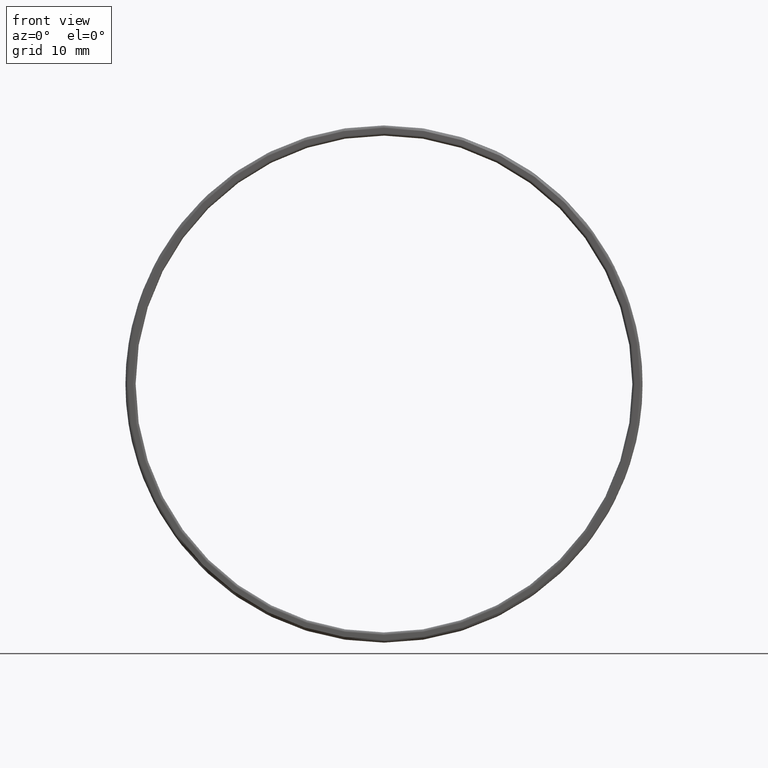
[diagram: clean part render]
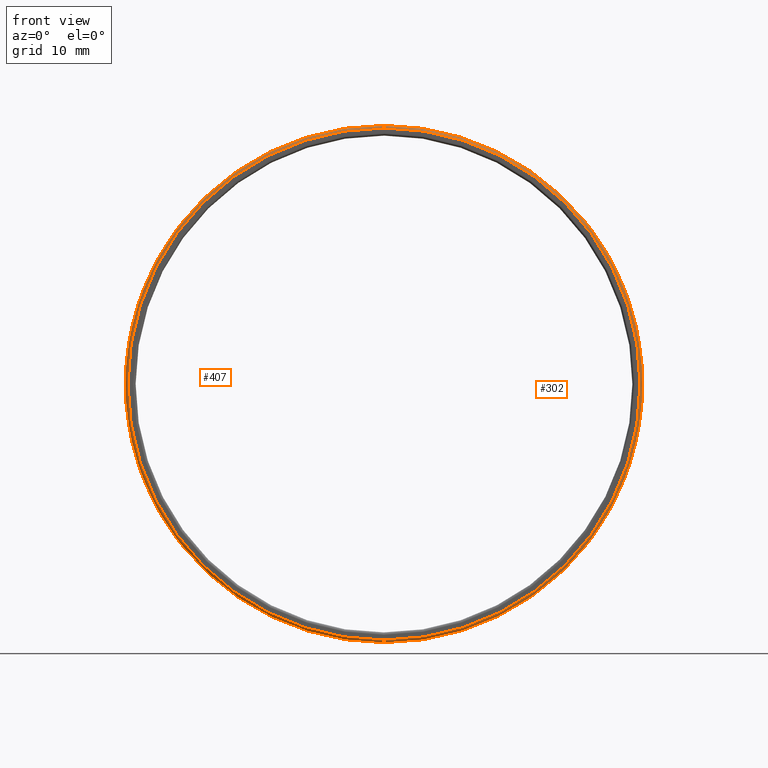
[diagram: same view with one multi-face feature highlighted, each face labeled with its STEP entity id]
A machine part, front view. The highlighted faces form ONE feature: a constant-radius fillet chain: 2 tangent blend faces with common blend radius 0.25 mm. The faces share edges in the B-rep.
Their STEP definitions:
[1] entity #302 (Torus):
#15 = CARTESIAN_POINT ( 'NONE',  ( 0.0000000000000000000, -0.2500000000000019429, 0.0000000000000000000 ) ) ;
#40 = EDGE_CURVE ( 'NONE', #435, #252, #283, .T. ) ;
#60 = VERTEX_POINT ( 'NONE', #215 ) ;
#66 = CIRCLE ( 'NONE', #128, 25.39999999999999858 ) ;
#77 = VERTEX_POINT ( 'NONE', #325 ) ;
#81 = DIRECTION ( 'NONE',  ( -0.0000000000000000000, 1.000000000000000000, -0.0000000000000000000 ) ) ;
#83 = CARTESIAN_POINT ( 'NONE',  ( 0.0000000000000000000, -0.5000000000000022204, 25.14999999999999858 ) ) ;
#84 = EDGE_CURVE ( 'NONE', #435, #77, #276, .T. ) ;
#97 = CARTESIAN_POINT ( 'NONE',  ( 3.095294784844934972E-15, -0.5000000000000022204, -25.14999999999999858 ) ) ;
#109 = TOROIDAL_SURFACE ( 'NONE', #200, 25.14999999999999858, 0.2500000000000000000 ) ;
#128 = AXIS2_PLACEMENT_3D ( 'NONE', #432, #267, #342 ) ;
#137 = EDGE_CURVE ( 'NONE', #60, #77, #66, .T. ) ;
#138 = CARTESIAN_POINT ( 'NONE',  ( 0.0000000000000000000, -0.5000000000000022204, 0.0000000000000000000 ) ) ;
#172 = DIRECTION ( 'NONE',  ( 0.0000000000000000000, -1.000000000000000000, 0.0000000000000000000 ) ) ;
#173 = CIRCLE ( 'NONE', #351, 0.2500000000000002220 ) ;
#200 = AXIS2_PLACEMENT_3D ( 'NONE', #15, #81, #309 ) ;
#213 = ORIENTED_EDGE ( 'NONE', *, *, #453, .F. ) ;
#215 = CARTESIAN_POINT ( 'NONE',  ( 0.0000000000000000000, -0.2500000000000019429, 25.39999999999999858 ) ) ;
#236 = ORIENTED_EDGE ( 'NONE', *, *, #40, .F. ) ;
#248 = DIRECTION ( 'NONE',  ( 0.0000000000000000000, 0.0000000000000000000, 1.000000000000000000 ) ) ;
#252 = VERTEX_POINT ( 'NONE', #83 ) ;
#267 = DIRECTION ( 'NONE',  ( -0.0000000000000000000, 1.000000000000000000, -0.0000000000000000000 ) ) ;
#276 = CIRCLE ( 'NONE', #419, 0.2500000000000002220 ) ;
#283 = CIRCLE ( 'NONE', #404, 25.14999999999999858 ) ;
#296 = CARTESIAN_POINT ( 'NONE',  ( 3.079986699855593078E-15, -0.2500000000000019429, -25.14999999999999858 ) ) ;
#298 = FACE_OUTER_BOUND ( 'NONE', #449, .T. ) ;
#302 = ADVANCED_FACE ( 'NONE', ( #298 ), #109, .T. ) ;
#309 = DIRECTION ( 'NONE',  ( 0.0000000000000000000, 0.0000000000000000000, 1.000000000000000000 ) ) ;
#325 = CARTESIAN_POINT ( 'NONE',  ( 3.110602869834276865E-15, -0.2500000000000019429, -25.39999999999999858 ) ) ;
#333 = DIRECTION ( 'NONE',  ( 1.000000000000000000, 0.0000000000000000000, 1.224646799147353207E-16 ) ) ;
#340 = ORIENTED_EDGE ( 'NONE', *, *, #84, .T. ) ;
#342 = DIRECTION ( 'NONE',  ( 0.0000000000000000000, 0.0000000000000000000, 1.000000000000000000 ) ) ;
#351 = AXIS2_PLACEMENT_3D ( 'NONE', #367, #451, #393 ) ;
#367 = CARTESIAN_POINT ( 'NONE',  ( 0.0000000000000000000, -0.2500000000000019429, 25.14999999999999858 ) ) ;
#374 = DIRECTION ( 'NONE',  ( 1.224646799147349509E-16, 0.0000000000000000000, -1.000000000000000000 ) ) ;
#393 = DIRECTION ( 'NONE',  ( 0.0000000000000000000, 0.0000000000000000000, 1.000000000000000000 ) ) ;
#404 = AXIS2_PLACEMENT_3D ( 'NONE', #138, #172, #248 ) ;
#419 = AXIS2_PLACEMENT_3D ( 'NONE', #296, #333, #374 ) ;
#432 = CARTESIAN_POINT ( 'NONE',  ( 0.0000000000000000000, -0.2500000000000019429, 0.0000000000000000000 ) ) ;
#435 = VERTEX_POINT ( 'NONE', #97 ) ;
#440 = ORIENTED_EDGE ( 'NONE', *, *, #137, .F. ) ;
#449 = EDGE_LOOP ( 'NONE', ( #236, #340, #440, #213 ) ) ;
#451 = DIRECTION ( 'NONE',  ( -1.000000000000000000, 0.0000000000000000000, 0.0000000000000000000 ) ) ;
#453 = EDGE_CURVE ( 'NONE', #252, #60, #173, .T. ) ;
[2] entity #407 (Torus):
#16 = EDGE_CURVE ( 'NONE', #77, #60, #114, .T. ) ;
#18 = CARTESIAN_POINT ( 'NONE',  ( 0.0000000000000000000, -0.5000000000000022204, 0.0000000000000000000 ) ) ;
#20 = CIRCLE ( 'NONE', #240, 25.14999999999999858 ) ;
#26 = DIRECTION ( 'NONE',  ( 0.0000000000000000000, 0.0000000000000000000, 1.000000000000000000 ) ) ;
#35 = TOROIDAL_SURFACE ( 'NONE', #192, 25.14999999999999858, 0.2500000000000000000 ) ;
#45 = ORIENTED_EDGE ( 'NONE', *, *, #84, .F. ) ;
#51 = CARTESIAN_POINT ( 'NONE',  ( 0.0000000000000000000, -0.2500000000000019429, 0.0000000000000000000 ) ) ;
#52 = ORIENTED_EDGE ( 'NONE', *, *, #16, .F. ) ;
#60 = VERTEX_POINT ( 'NONE', #215 ) ;
#77 = VERTEX_POINT ( 'NONE', #325 ) ;
#83 = CARTESIAN_POINT ( 'NONE',  ( 0.0000000000000000000, -0.5000000000000022204, 25.14999999999999858 ) ) ;
#84 = EDGE_CURVE ( 'NONE', #435, #77, #276, .T. ) ;
#89 = ORIENTED_EDGE ( 'NONE', *, *, #233, .F. ) ;
#97 = CARTESIAN_POINT ( 'NONE',  ( 3.095294784844934972E-15, -0.5000000000000022204, -25.14999999999999858 ) ) ;
#99 = DIRECTION ( 'NONE',  ( -0.0000000000000000000, 1.000000000000000000, -0.0000000000000000000 ) ) ;
#103 = EDGE_LOOP ( 'NONE', ( #45, #89, #221, #52 ) ) ;
#114 = CIRCLE ( 'NONE', #279, 25.39999999999999858 ) ;
#159 = DIRECTION ( 'NONE',  ( 0.0000000000000000000, 0.0000000000000000000, 1.000000000000000000 ) ) ;
#173 = CIRCLE ( 'NONE', #351, 0.2500000000000002220 ) ;
#192 = AXIS2_PLACEMENT_3D ( 'NONE', #51, #99, #26 ) ;
#215 = CARTESIAN_POINT ( 'NONE',  ( 0.0000000000000000000, -0.2500000000000019429, 25.39999999999999858 ) ) ;
#221 = ORIENTED_EDGE ( 'NONE', *, *, #453, .T. ) ;
#233 = EDGE_CURVE ( 'NONE', #252, #435, #20, .T. ) ;
#240 = AXIS2_PLACEMENT_3D ( 'NONE', #18, #388, #159 ) ;
#241 = DIRECTION ( 'NONE',  ( -0.0000000000000000000, 1.000000000000000000, -0.0000000000000000000 ) ) ;
#252 = VERTEX_POINT ( 'NONE', #83 ) ;
#276 = CIRCLE ( 'NONE', #419, 0.2500000000000002220 ) ;
#279 = AXIS2_PLACEMENT_3D ( 'NONE', #327, #241, #368 ) ;
#296 = CARTESIAN_POINT ( 'NONE',  ( 3.079986699855593078E-15, -0.2500000000000019429, -25.14999999999999858 ) ) ;
#325 = CARTESIAN_POINT ( 'NONE',  ( 3.110602869834276865E-15, -0.2500000000000019429, -25.39999999999999858 ) ) ;
#327 = CARTESIAN_POINT ( 'NONE',  ( 0.0000000000000000000, -0.2500000000000019429, 0.0000000000000000000 ) ) ;
#333 = DIRECTION ( 'NONE',  ( 1.000000000000000000, 0.0000000000000000000, 1.224646799147353207E-16 ) ) ;
#351 = AXIS2_PLACEMENT_3D ( 'NONE', #367, #451, #393 ) ;
#367 = CARTESIAN_POINT ( 'NONE',  ( 0.0000000000000000000, -0.2500000000000019429, 25.14999999999999858 ) ) ;
#368 = DIRECTION ( 'NONE',  ( 0.0000000000000000000, 0.0000000000000000000, 1.000000000000000000 ) ) ;
#374 = DIRECTION ( 'NONE',  ( 1.224646799147349509E-16, 0.0000000000000000000, -1.000000000000000000 ) ) ;
#388 = DIRECTION ( 'NONE',  ( 0.0000000000000000000, -1.000000000000000000, 0.0000000000000000000 ) ) ;
#393 = DIRECTION ( 'NONE',  ( 0.0000000000000000000, 0.0000000000000000000, 1.000000000000000000 ) ) ;
#407 = ADVANCED_FACE ( 'NONE', ( #421 ), #35, .T. ) ;
#419 = AXIS2_PLACEMENT_3D ( 'NONE', #296, #333, #374 ) ;
#421 = FACE_OUTER_BOUND ( 'NONE', #103, .T. ) ;
#435 = VERTEX_POINT ( 'NONE', #97 ) ;
#451 = DIRECTION ( 'NONE',  ( -1.000000000000000000, 0.0000000000000000000, 0.0000000000000000000 ) ) ;
#453 = EDGE_CURVE ( 'NONE', #252, #60, #173, .T. ) ;